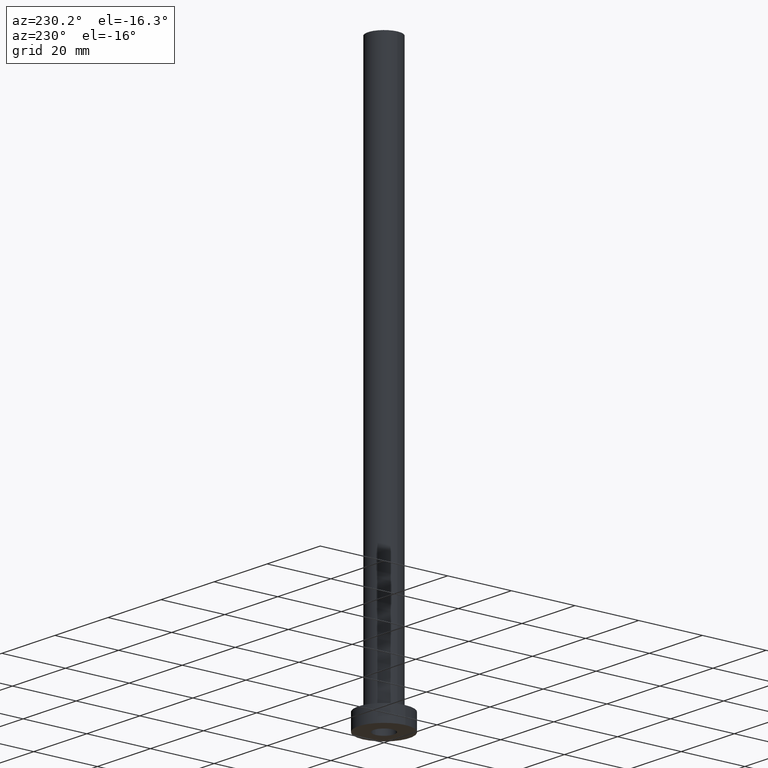
[diagram: clean part render]
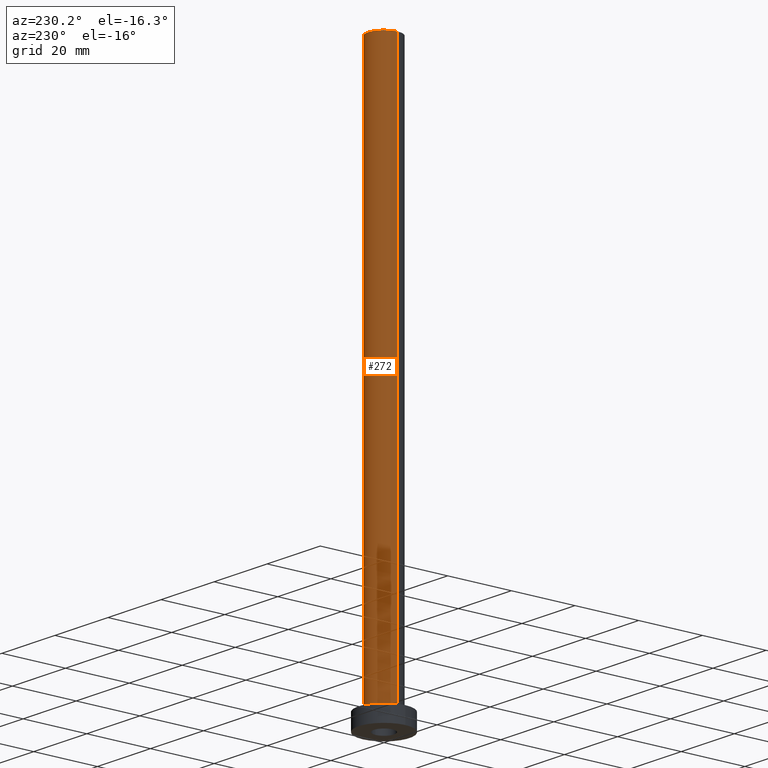
[diagram: same view with one face highlighted and labeled with its STEP entity id]
A machine part, auxiliary view. The second image highlights one B-rep face of the part: STEP entity #272.
In plain terms, the highlighted cylindrical surface (edge-blend (fillet) strip) has radius 5 mm, axis along (-0, -0, -1).
Its self-contained STEP definition (entity closure, byte-faithful):
#13 = CARTESIAN_POINT ( 'NONE',  ( 0.000000000000000000, 0.000000000000000000, 175.0000000000000284 ) ) ;
#22 = CARTESIAN_POINT ( 'NONE',  ( -5.000000000000000000, 0.000000000000000000, 5.500000000000005329 ) ) ;
#25 = CARTESIAN_POINT ( 'NONE',  ( 0.000000000000000000, 0.000000000000000000, 5.500000000000005329 ) ) ;
#28 = FACE_OUTER_BOUND ( 'NONE', #76, .T. ) ;
#35 = VERTEX_POINT ( 'NONE', #401 ) ;
#58 = DIRECTION ( 'NONE',  ( 0.000000000000000000, 0.000000000000000000, 1.000000000000000000 ) ) ;
#62 = EDGE_CURVE ( 'NONE', #114, #70, #381, .T. ) ;
#65 = ORIENTED_EDGE ( 'NONE', *, *, #62, .F. ) ;
#69 = DIRECTION ( 'NONE',  ( -0.000000000000000000, -0.000000000000000000, -1.000000000000000000 ) ) ;
#70 = VERTEX_POINT ( 'NONE', #22 ) ;
#76 = EDGE_LOOP ( 'NONE', ( #103, #448, #341, #65 ) ) ;
#90 = CARTESIAN_POINT ( 'NONE',  ( -5.000000000000000000, 0.000000000000000000, 175.0000000000000284 ) ) ;
#98 = AXIS2_PLACEMENT_3D ( 'NONE', #13, #148, #431 ) ;
#103 = ORIENTED_EDGE ( 'NONE', *, *, #374, .F. ) ;
#114 = VERTEX_POINT ( 'NONE', #90 ) ;
#134 = CARTESIAN_POINT ( 'NONE',  ( 0.000000000000000000, 0.000000000000000000, 175.0000000000000284 ) ) ;
#138 = CYLINDRICAL_SURFACE ( 'NONE', #440, 5.000000000000000000 ) ;
#148 = DIRECTION ( 'NONE',  ( 0.000000000000000000, 0.000000000000000000, 1.000000000000000000 ) ) ;
#183 = DIRECTION ( 'NONE',  ( -0.000000000000000000, -0.000000000000000000, -1.000000000000000000 ) ) ;
#247 = VERTEX_POINT ( 'NONE', #451 ) ;
#258 = EDGE_CURVE ( 'NONE', #247, #70, #289, .T. ) ;
#264 = CIRCLE ( 'NONE', #98, 5.000000000000000000 ) ;
#266 = CARTESIAN_POINT ( 'NONE',  ( 5.000000000000000000, 6.123233995736766282E-16, 175.0000000000000284 ) ) ;
#272 = ADVANCED_FACE ( 'NONE', ( #28 ), #138, .T. ) ;
#281 = CARTESIAN_POINT ( 'NONE',  ( -5.000000000000000000, 0.000000000000000000, 175.0000000000000284 ) ) ;
#286 = DIRECTION ( 'NONE',  ( -1.000000000000000000, 0.000000000000000000, 0.000000000000000000 ) ) ;
#289 = CIRCLE ( 'NONE', #348, 5.000000000000000000 ) ;
#341 = ORIENTED_EDGE ( 'NONE', *, *, #258, .T. ) ;
#348 = AXIS2_PLACEMENT_3D ( 'NONE', #25, #58, #361 ) ;
#361 = DIRECTION ( 'NONE',  ( 1.000000000000000000, 0.000000000000000000, 0.000000000000000000 ) ) ;
#374 = EDGE_CURVE ( 'NONE', #35, #114, #264, .T. ) ;
#376 = EDGE_CURVE ( 'NONE', #35, #247, #433, .T. ) ;
#381 = LINE ( 'NONE', #281, #435 ) ;
#401 = CARTESIAN_POINT ( 'NONE',  ( 5.000000000000000000, 6.123233995736766282E-16, 175.0000000000000284 ) ) ;
#412 = DIRECTION ( 'NONE',  ( -0.000000000000000000, -0.000000000000000000, -1.000000000000000000 ) ) ;
#423 = VECTOR ( 'NONE', #69, 1000.000000000000000 ) ;
#431 = DIRECTION ( 'NONE',  ( 1.000000000000000000, 0.000000000000000000, 0.000000000000000000 ) ) ;
#433 = LINE ( 'NONE', #266, #423 ) ;
#435 = VECTOR ( 'NONE', #412, 1000.000000000000000 ) ;
#440 = AXIS2_PLACEMENT_3D ( 'NONE', #134, #183, #286 ) ;
#448 = ORIENTED_EDGE ( 'NONE', *, *, #376, .T. ) ;
#451 = CARTESIAN_POINT ( 'NONE',  ( 5.000000000000000000, 6.123233995736766282E-16, 5.500000000000005329 ) ) ;